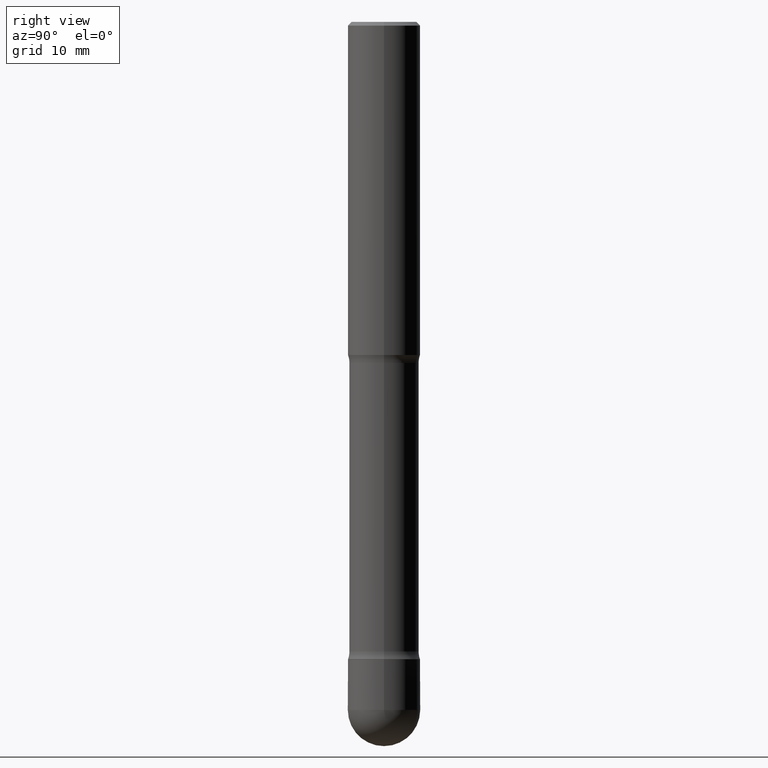
[diagram: clean part render]
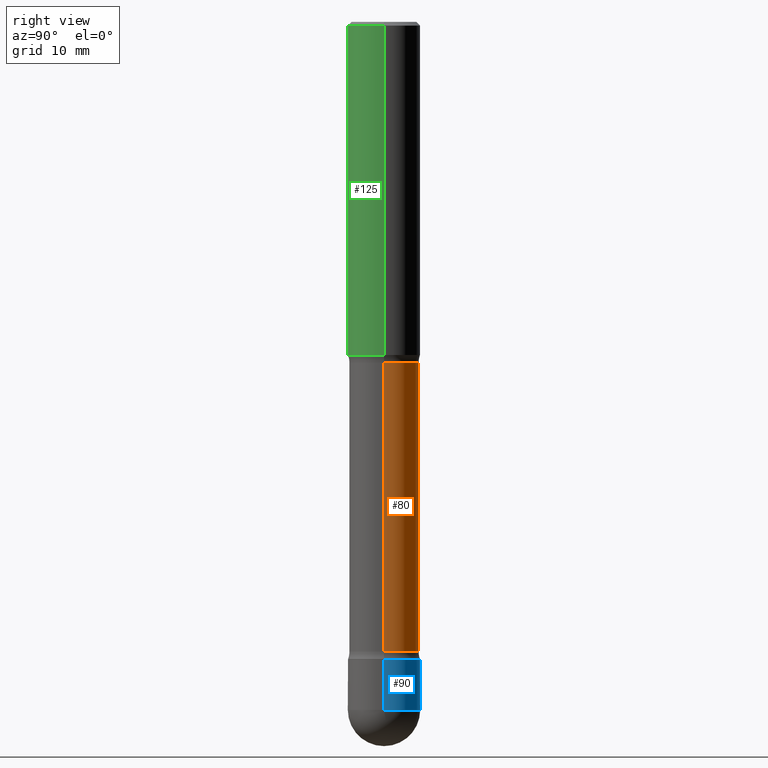
[diagram: same view with three faces highlighted in distinct colors, each labeled with its STEP entity id]
A machine part, right view with three faces highlighted in distinct colors.
Their STEP definitions:

[orange] entity #80 — the highlighted cylindrical surface (edge-blend (fillet) strip) has radius 4.8095 mm, axis along (0, -0, -1).
#25 = DIRECTION ( 'NONE',  ( 2.445468806185136597E-29, -3.491481338843145583E-15, -1.000000000000000000 ) ) ;
#28 = VERTEX_POINT ( 'NONE', #249 ) ;
#80 = ADVANCED_FACE ( 'NONE', ( #203 ), #115, .T. ) ;
#93 = AXIS2_PLACEMENT_3D ( 'NONE', #507, #472, #432 ) ;
#107 = ORIENTED_EDGE ( 'NONE', *, *, #318, .F. ) ;
#115 = CYLINDRICAL_SURFACE ( 'NONE', #93, 0.1893499999999998795 ) ;
#122 = ORIENTED_EDGE ( 'NONE', *, *, #531, .T. ) ;
#140 = VERTEX_POINT ( 'NONE', #392 ) ;
#158 = ORIENTED_EDGE ( 'NONE', *, *, #320, .T. ) ;
#163 = CARTESIAN_POINT ( 'NONE',  ( -0.1893499999999997130, -1.062546173876383384E-14, -3.421953194726919723 ) ) ;
#188 = VECTOR ( 'NONE', #471, 39.37007874015748143 ) ;
#189 = VECTOR ( 'NONE', #384, 39.37007874015748143 ) ;
#193 = ORIENTED_EDGE ( 'NONE', *, *, #529, .F. ) ;
#199 = AXIS2_PLACEMENT_3D ( 'NONE', #460, #339, #204 ) ;
#203 = FACE_OUTER_BOUND ( 'NONE', #373, .T. ) ;
#204 = DIRECTION ( 'NONE',  ( -1.000000000000000000, 6.982962677686266711E-15, 0.000000000000000000 ) ) ;
#249 = CARTESIAN_POINT ( 'NONE',  ( 0.1893500000000000461, -7.722285130400744090E-15, -1.853646805273080567 ) ) ;
#299 = DIRECTION ( 'NONE',  ( -1.000000000000000000, 6.982962677686263555E-15, 0.000000000000000000 ) ) ;
#304 = CARTESIAN_POINT ( 'NONE',  ( -0.1893500000000000461, -5.149749246397279985E-15, -1.853646805273080567 ) ) ;
#312 = VERTEX_POINT ( 'NONE', #163 ) ;
#318 = EDGE_CURVE ( 'NONE', #312, #140, #488, .T. ) ;
#320 = EDGE_CURVE ( 'NONE', #28, #140, #330, .T. ) ;
#330 = LINE ( 'NONE', #334, #188 ) ;
#334 = CARTESIAN_POINT ( 'NONE',  ( 0.1893499999999998795, -1.339562154243400138E-14, -3.464599999999999902 ) ) ;
#339 = DIRECTION ( 'NONE',  ( 2.445468806185136597E-29, -3.491481338843145583E-15, -1.000000000000000000 ) ) ;
#340 = CARTESIAN_POINT ( 'NONE',  ( 8.368279793930255374E-29, -1.194768572178372719E-14, -3.421953194726919723 ) ) ;
#373 = EDGE_LOOP ( 'NONE', ( #122, #158, #107, #193 ) ) ;
#384 = DIRECTION ( 'NONE',  ( 2.445468806185136877E-29, -3.491481338843145188E-15, -1.000000000000000000 ) ) ;
#392 = CARTESIAN_POINT ( 'NONE',  ( 0.1893499999999997130, -1.050886477147849106E-14, -3.421953194726919723 ) ) ;
#423 = LINE ( 'NONE', #550, #189 ) ;
#432 = DIRECTION ( 'NONE',  ( -1.000000000000000000, 6.982962677686267499E-15, 0.000000000000000000 ) ) ;
#457 = AXIS2_PLACEMENT_3D ( 'NONE', #340, #25, #299 ) ;
#460 = CARTESIAN_POINT ( 'NONE',  ( 4.533035439980052208E-29, -6.471973229417174909E-15, -1.853646805273080567 ) ) ;
#470 = CIRCLE ( 'NONE', #199, 0.1893500000000000461 ) ;
#471 = DIRECTION ( 'NONE',  ( 2.445468806185136877E-29, -3.491481338843145188E-15, -1.000000000000000000 ) ) ;
#472 = DIRECTION ( 'NONE',  ( 2.445468806185136597E-29, -3.491481338843145583E-15, -1.000000000000000000 ) ) ;
#488 = CIRCLE ( 'NONE', #457, 0.1893499999999997130 ) ;
#492 = VERTEX_POINT ( 'NONE', #304 ) ;
#507 = CARTESIAN_POINT ( 'NONE',  ( 8.472571225909024784E-29, -1.209658624655596216E-14, -3.464599999999999902 ) ) ;
#529 = EDGE_CURVE ( 'NONE', #492, #312, #423, .T. ) ;
#531 = EDGE_CURVE ( 'NONE', #492, #28, #470, .T. ) ;
#550 = CARTESIAN_POINT ( 'NONE',  ( -0.1893499999999998795, -1.077436226353606881E-14, -3.464599999999999902 ) ) ;

[blue] entity #90 — the highlighted cylindrical surface (edge-blend (fillet) strip) has radius 5 mm, axis along (-0, 0, 1).
#1 = ORIENTED_EDGE ( 'NONE', *, *, #542, .F. ) ;
#3 = CARTESIAN_POINT ( 'NONE',  ( 9.146420155453339430E-29, -1.305866392947419182E-14, -3.740150000000000308 ) ) ;
#22 = VECTOR ( 'NONE', #442, 39.37007874015748143 ) ;
#38 = EDGE_CURVE ( 'NONE', #497, #539, #493, .T. ) ;
#48 = DIRECTION ( 'NONE',  ( -2.445468806185136597E-29, 3.491481338843145583E-15, 1.000000000000000000 ) ) ;
#59 = EDGE_LOOP ( 'NONE', ( #156, #509, #524, #1, #427 ) ) ;
#64 = DIRECTION ( 'NONE',  ( 1.000000000000000000, -6.982962677686271444E-15, 0.000000000000000000 ) ) ;
#76 = LINE ( 'NONE', #168, #22 ) ;
#90 = ADVANCED_FACE ( 'NONE', ( #261 ), #347, .T. ) ;
#100 = CIRCLE ( 'NONE', #475, 0.1968499999999993033 ) ;
#116 = DIRECTION ( 'NONE',  ( -2.445468806185136877E-29, 3.491481338843145188E-15, 1.000000000000000000 ) ) ;
#117 = VERTEX_POINT ( 'NONE', #394 ) ;
#143 = EDGE_CURVE ( 'NONE', #513, #117, #313, .T. ) ;
#146 = CARTESIAN_POINT ( 'NONE',  ( -0.1968499999999993033, -1.117892171267132551E-14, -3.740150000000000308 ) ) ;
#156 = ORIENTED_EDGE ( 'NONE', *, *, #175, .T. ) ;
#162 = DIRECTION ( 'NONE',  ( -2.445468806185136597E-29, 3.491481338843145583E-15, 1.000000000000000000 ) ) ;
#167 = EDGE_CURVE ( 'NONE', #326, #539, #76, .T. ) ;
#168 = CARTESIAN_POINT ( 'NONE',  ( -0.1968499999999993311, 1.398703375343752463E-15, -9.682923725166748645E-30 ) ) ;
#171 = AXIS2_PLACEMENT_3D ( 'NONE', #440, #162, #343 ) ;
#175 = EDGE_CURVE ( 'NONE', #117, #326, #100, .T. ) ;
#179 = DIRECTION ( 'NONE',  ( -2.445468806185136597E-29, 3.491481338843145583E-15, 1.000000000000000000 ) ) ;
#192 = LINE ( 'NONE', #329, #458 ) ;
#251 = CARTESIAN_POINT ( 'NONE',  ( 0.1968499999999993588, -1.347118244965850061E-14, -3.464599999999999902 ) ) ;
#261 = FACE_OUTER_BOUND ( 'NONE', #59, .T. ) ;
#288 = CARTESIAN_POINT ( 'NONE',  ( 8.472571225909024784E-29, -1.209658624655596216E-14, -3.464599999999999902 ) ) ;
#296 = CARTESIAN_POINT ( 'NONE',  ( -0.1968499999999993588, -1.117892171267132393E-14, -3.464599999999999902 ) ) ;
#313 = CIRCLE ( 'NONE', #322, 0.1968499999999993033 ) ;
#322 = AXIS2_PLACEMENT_3D ( 'NONE', #3, #48, #400 ) ;
#326 = VERTEX_POINT ( 'NONE', #146 ) ;
#329 = CARTESIAN_POINT ( 'NONE',  ( 0.1968499999999993311, -1.374596203102536875E-15, 9.598753983154267227E-30 ) ) ;
#343 = DIRECTION ( 'NONE',  ( 1.000000000000000000, -6.982962677686266711E-15, 4.876176775795935793E-29 ) ) ;
#347 = CYLINDRICAL_SURFACE ( 'NONE', #171, 0.1968499999999993311 ) ;
#358 = CARTESIAN_POINT ( 'NONE',  ( 9.146420155453339430E-29, -1.305866392947419182E-14, -3.740150000000000308 ) ) ;
#394 = CARTESIAN_POINT ( 'NONE',  ( 1.398703375343845351E-15, 0.1968499999999865357, -3.740150000000000752 ) ) ;
#400 = DIRECTION ( 'NONE',  ( 1.000000000000000000, -6.982962677686263555E-15, 0.000000000000000000 ) ) ;
#403 = CARTESIAN_POINT ( 'NONE',  ( 0.1968499999999993033, -1.395222129111761465E-14, -3.740150000000000308 ) ) ;
#427 = ORIENTED_EDGE ( 'NONE', *, *, #143, .T. ) ;
#440 = CARTESIAN_POINT ( 'NONE',  ( 0.000000000000000000, 0.000000000000000000, 0.000000000000000000 ) ) ;
#442 = DIRECTION ( 'NONE',  ( -2.445468806185136877E-29, 3.491481338843145188E-15, 1.000000000000000000 ) ) ;
#453 = AXIS2_PLACEMENT_3D ( 'NONE', #288, #462, #64 ) ;
#458 = VECTOR ( 'NONE', #116, 39.37007874015748143 ) ;
#462 = DIRECTION ( 'NONE',  ( -2.445468806185136597E-29, 3.491481338843145583E-15, 1.000000000000000000 ) ) ;
#475 = AXIS2_PLACEMENT_3D ( 'NONE', #358, #179, #566 ) ;
#493 = CIRCLE ( 'NONE', #453, 0.1968499999999993588 ) ;
#497 = VERTEX_POINT ( 'NONE', #251 ) ;
#509 = ORIENTED_EDGE ( 'NONE', *, *, #167, .T. ) ;
#513 = VERTEX_POINT ( 'NONE', #403 ) ;
#524 = ORIENTED_EDGE ( 'NONE', *, *, #38, .F. ) ;
#539 = VERTEX_POINT ( 'NONE', #296 ) ;
#542 = EDGE_CURVE ( 'NONE', #513, #497, #192, .T. ) ;
#566 = DIRECTION ( 'NONE',  ( 1.000000000000000000, -6.982962677686263555E-15, 0.000000000000000000 ) ) ;

[green] entity #125 — the highlighted cylindrical surface (edge-blend (fillet) strip) has radius 5 mm, axis along (0, -0, -1).
#16 = CARTESIAN_POINT ( 'NONE',  ( 4.890937612370220610E-31, -6.982962677686216421E-17, -0.01999999999999978531 ) ) ;
#17 = EDGE_CURVE ( 'NONE', #520, #308, #348, .T. ) ;
#26 = DIRECTION ( 'NONE',  ( 2.445468806185136877E-29, -3.491481338843145188E-15, -1.000000000000000000 ) ) ;
#35 = EDGE_CURVE ( 'NONE', #49, #253, #397, .T. ) ;
#49 = VERTEX_POINT ( 'NONE', #242 ) ;
#89 = DIRECTION ( 'NONE',  ( 2.445468806185136877E-29, -3.491481338843145188E-15, -1.000000000000000000 ) ) ;
#103 = DIRECTION ( 'NONE',  ( 2.445468806185136597E-29, -3.491481338843145583E-15, -1.000000000000000000 ) ) ;
#110 = CARTESIAN_POINT ( 'NONE',  ( -0.1968499999999998307, 1.304766576325678310E-15, -0.01999999999999978531 ) ) ;
#123 = AXIS2_PLACEMENT_3D ( 'NONE', #371, #429, #537 ) ;
#125 = ADVANCED_FACE ( 'NONE', ( #390 ), #166, .T. ) ;
#166 = CYLINDRICAL_SURFACE ( 'NONE', #565, 0.1968499999999999417 ) ;
#214 = DIRECTION ( 'NONE',  ( 2.445468806185136597E-29, -3.491481338843145583E-15, -1.000000000000000000 ) ) ;
#229 = CARTESIAN_POINT ( 'NONE',  ( -0.1968499999999999417, -1.072199004345342055E-14, -3.464599999999999902 ) ) ;
#236 = ORIENTED_EDGE ( 'NONE', *, *, #17, .T. ) ;
#242 = CARTESIAN_POINT ( 'NONE',  ( 0.1968500000000000527, -4.546940196572229414E-15, -1.811000000000002608 ) ) ;
#244 = EDGE_CURVE ( 'NONE', #520, #49, #317, .T. ) ;
#253 = VERTEX_POINT ( 'NONE', #364 ) ;
#280 = ORIENTED_EDGE ( 'NONE', *, *, #523, .T. ) ;
#294 = ORIENTED_EDGE ( 'NONE', *, *, #244, .F. ) ;
#308 = VERTEX_POINT ( 'NONE', #110 ) ;
#317 = LINE ( 'NONE', #484, #468 ) ;
#341 = VECTOR ( 'NONE', #26, 39.37007874015748143 ) ;
#348 = CIRCLE ( 'NONE', #424, 0.1968499999999998307 ) ;
#360 = DIRECTION ( 'NONE',  ( -1.000000000000000000, 6.982962677686270655E-15, 0.000000000000000000 ) ) ;
#364 = CARTESIAN_POINT ( 'NONE',  ( -0.1968500000000000527, -4.948476501542403853E-15, -1.811000000000002608 ) ) ;
#371 = CARTESIAN_POINT ( 'NONE',  ( 4.428744008001288403E-29, -6.323072704644945461E-15, -1.811000000000002608 ) ) ;
#372 = CARTESIAN_POINT ( 'NONE',  ( 0.1968499999999998307, -1.420318657638186952E-15, -0.01999999999999978531 ) ) ;
#381 = DIRECTION ( 'NONE',  ( -1.000000000000000000, 6.982962677686266711E-15, 0.000000000000000000 ) ) ;
#390 = FACE_OUTER_BOUND ( 'NONE', #491, .T. ) ;
#397 = CIRCLE ( 'NONE', #123, 0.1968500000000000527 ) ;
#402 = ORIENTED_EDGE ( 'NONE', *, *, #35, .F. ) ;
#424 = AXIS2_PLACEMENT_3D ( 'NONE', #16, #103, #381 ) ;
#425 = LINE ( 'NONE', #229, #341 ) ;
#429 = DIRECTION ( 'NONE',  ( 2.445468806185136597E-29, -3.491481338843145583E-15, -1.000000000000000000 ) ) ;
#468 = VECTOR ( 'NONE', #89, 39.37007874015748143 ) ;
#484 = CARTESIAN_POINT ( 'NONE',  ( 0.1968499999999999417, -1.344707527741728837E-14, -3.464599999999999902 ) ) ;
#491 = EDGE_LOOP ( 'NONE', ( #294, #236, #280, #402 ) ) ;
#514 = CARTESIAN_POINT ( 'NONE',  ( 8.472571225909024784E-29, -1.209658624655596216E-14, -3.464599999999999902 ) ) ;
#520 = VERTEX_POINT ( 'NONE', #372 ) ;
#523 = EDGE_CURVE ( 'NONE', #308, #253, #425, .T. ) ;
#537 = DIRECTION ( 'NONE',  ( -1.000000000000000000, 6.982962677686266711E-15, 0.000000000000000000 ) ) ;
#565 = AXIS2_PLACEMENT_3D ( 'NONE', #514, #214, #360 ) ;